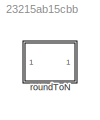
MODEL slx_23215ab15cbb
KIND library
CONFIG AbsTol = auto
CONFIG EnableMultiTasking = off
CONFIG FixedStep = auto
CONFIG MaxStep = auto
CONFIG MinStep = auto
CONFIG RelTol = 1e-3
CONFIG SampleTimeConstraint = Unconstrained
CONFIG SolverName = VariableStepAuto
CONFIG StartTime = 0.0
CONFIG StopTime = 10.0
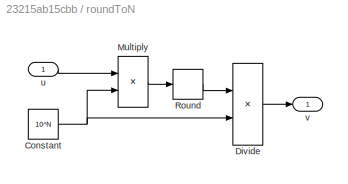
BLOCK [SubSystem] roundToN
  Ports = [1, 1]
  RequestExecContextInheritance = off
BLOCK [Constant] roundToN/Constant
  Value = 10^N
BLOCK [Product] roundToN/Divide
  Inputs = */
  Ports = [2, 1]
BLOCK [Product] roundToN/Multiply
  Ports = [2, 1]
BLOCK [Rounding] roundToN/Round
  Operator = round
BLOCK [Inport] roundToN/u
BLOCK [Outport] roundToN/v
  VectorParamsAs1DForOutWhenUnconnected = off
NET roundToN/Constant:1 -> roundToN/Divide:2, roundToN/Multiply:2
LINE roundToN/Divide:1 -> roundToN/v:1
LINE roundToN/Multiply:1 -> roundToN/Round:1
LINE roundToN/Round:1 -> roundToN/Divide:1
LINE roundToN/u:1 -> roundToN/Multiply:1
note: NET lines group one-source signal fan-out (src -> all destinations, sorted); 1:1 wires keep LINE
